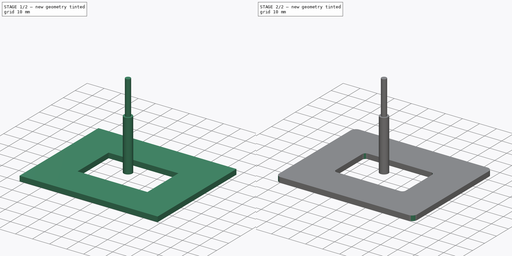
[diagram: build sequence overview — one tinted view per stage of 2, left to right]
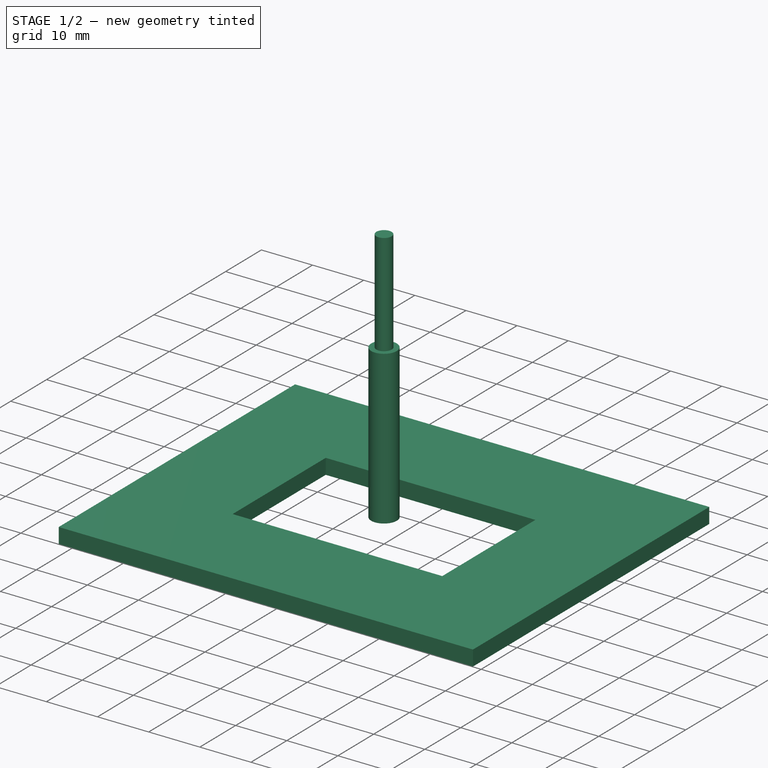
[diagram: stage 1 of 2 — iso view after this stage's code; geometry added in this stage tinted green]
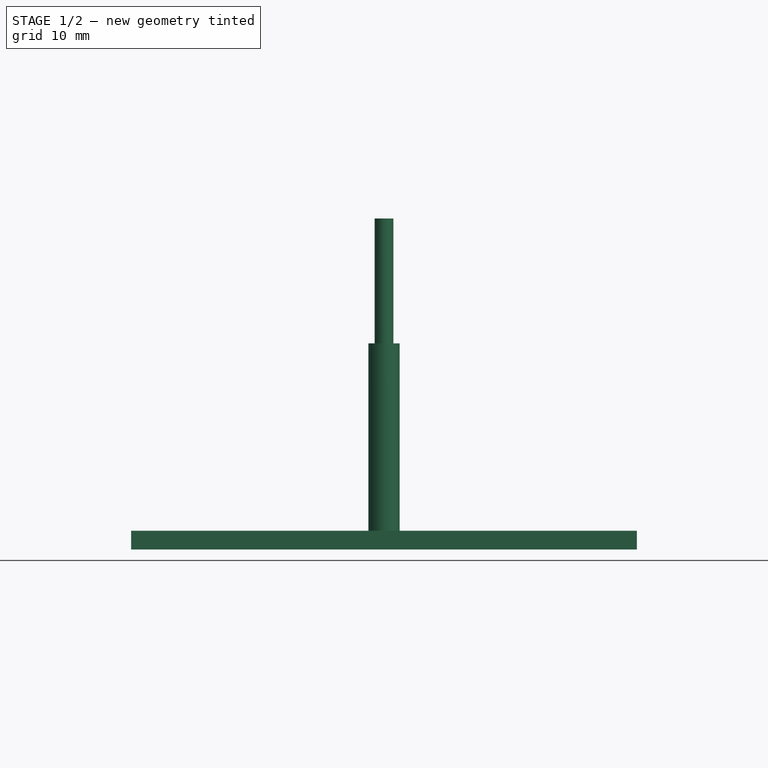
[diagram: stage 1 of 2 — front view after this stage's code; geometry added in this stage tinted green]
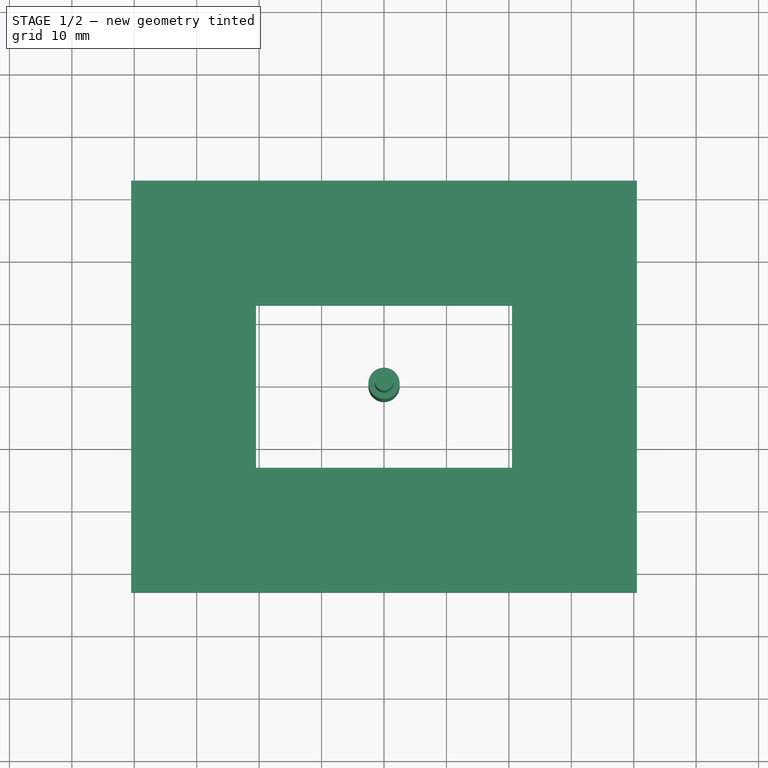
[diagram: stage 1 of 2 — top view after this stage's code; geometry added in this stage tinted green]
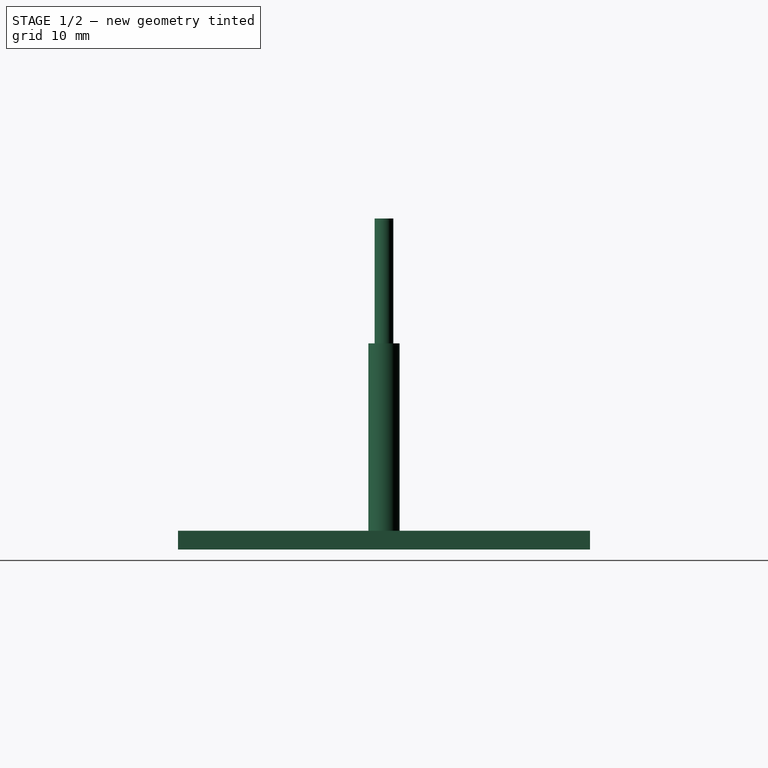
[diagram: stage 1 of 2 — right view after this stage's code; geometry added in this stage tinted green]
FCSTD DOCUMENT  (FreeCAD 1.1R42466 (Git))
Label: Balcony_Front_Flore3
License: All rights reserved
LicenseURL: https://en.wikipedia.org/wiki/All_rights_reserved
objects: App::Point×2, Sketcher::SketchObject×2, PartDesign::Fillet×2, PartDesign::Body×2, PartDesign::Pad×1, App::FeaturePython×1, PartDesign::Revolution×1
note: 18 computed .brp shape members not serialized (recipe doc carries the construction recipe); baked Part::Feature solids carry a one-line shape summary decoded from their .brp

FEATURE [App::Point] Origin001
  Role = Origin
FEATURE [Sketcher::SketchObject] Sketch
  ArcFitTolerance = 1e-06
  AttachmentSupport = -> [Origin]
  ExternalTypes = [0]
  FullyConstrained = true
  MakeInternals = false
  MapMode = 5
  sketch-geometry (10):
    g0: LineSegment StartX=-20.5 StartY=-13 StartZ=0 EndX=20.5 EndY=-13 EndZ=0
    g1: LineSegment StartX=20.5 StartY=-13 StartZ=0 EndX=20.5 EndY=13 EndZ=0
    g2: LineSegment StartX=20.5 StartY=13 StartZ=0 EndX=-20.5 EndY=13 EndZ=0
    g3: LineSegment StartX=-20.5 StartY=13 StartZ=0 EndX=-20.5 EndY=-13 EndZ=0
    g4: GeomPoint [constr] X=0 Y=0 Z=0
    g5: LineSegment StartX=-40.5 StartY=-33 StartZ=0 EndX=40.5 EndY=-33 EndZ=0
    g6: LineSegment StartX=40.5 StartY=-33 StartZ=0 EndX=40.5 EndY=33 EndZ=0
    g7: LineSegment StartX=40.5 StartY=33 StartZ=0 EndX=-40.5 EndY=33 EndZ=0
    g8: LineSegment StartX=-40.5 StartY=33 StartZ=0 EndX=-40.5 EndY=-33 EndZ=0
    g9: GeomPoint [constr] X=0 Y=0 Z=0
  constraints (24):
    c: Coincident(g0,g1)
    c: Coincident(g1,g2)
    c: Coincident(g2,g3)
    c: Coincident(g3,g0)
    c: Horizontal(g0)
    c: Horizontal(g2)
    c: Vertical(g1)
    c: Vertical(g3)
    c: Symmetric(g2,g0,g4)
    c: Distance(g1,g3) = 41
    c: Distance(g0,g2) = 26
    c: Coincident(g4,g-1)
    c: Coincident(g5,g6)
    c: Coincident(g6,g7)
    c: Coincident(g7,g8)
    c: Coincident(g8,g5)
    c: Horizontal(g5)
    c: Horizontal(g7)
    c: Vertical(g6)
    c: Vertical(g8)
    c: Symmetric(g7,g5,g9)
    c: Distance(g6,g8) = 81
    c: Distance(g5,g7) = 66
    c: Coincident(g9,g4)
FEATURE [PartDesign::Pad] Pad
  Direction = (0,0,1)
  Length = 3
  Length2 = 10
  Offset = 3
  Profile = -> Sketch
  ReferenceAxis = -> Sketch [N_Axis]
  Refine = true
  Reversed = true
  Suppressed = false
  Type = 0
FEATURE [PartDesign::Body] Body
  AllowCompound = false
  Group = -> [Sketch,Pad,Fillet,Fillet001]
  Origin = -> Origin
  Tip = -> Fillet001
FEATURE [App::FeaturePython] PropertyBag  label="Attributes017"  # WARN: FeaturePython — macro-defined, semantics opaque (R4)
  CustomPropertyGroups = 0
  CuttingEdgeHeight = 30
  Diameter = 5
  Flutes = 4
  Length = 50
  ShankDiameter = 3
FEATURE [Sketcher::SketchObject] Sketch003
  ArcFitTolerance = 0
  AttachmentSupport = -> [XZ_Plane003]
  ExternalTypes = [0]
  FullyConstrained = true
  MakeInternals = false
  MapMode = 5
  Placement = pos=(0,0,0) rot=(1,0,0;1.5708rad)
  expr: Constraints[10] = <<Attributes017>>.Length
  expr: Constraints[16] = <<Attributes017>>.ShankDiameter
  expr: Constraints[18] = <<Attributes017>>.CuttingEdgeHeight
  expr: Constraints[9] = <<Attributes017>>.Diameter
  sketch-geometry (8):
    g0: LineSegment StartX=0 StartY=50 StartZ=0 EndX=0 EndY=0 EndZ=0
    g1: LineSegment StartX=0 StartY=0 StartZ=0 EndX=2.5 EndY=0 EndZ=0
    g2: LineSegment StartX=2.5 StartY=0 StartZ=0 EndX=2.5 EndY=30 EndZ=0
    g3: LineSegment StartX=1.5 StartY=50 StartZ=0 EndX=0 EndY=50 EndZ=0
    g4: LineSegment [constr] StartX=2.5 StartY=0 StartZ=0 EndX=-2.5 EndY=0 EndZ=0
    g5: LineSegment StartX=1.5 StartY=29.99 StartZ=0 EndX=2.5 EndY=30 EndZ=0
    g6: LineSegment StartX=1.5 StartY=50 StartZ=0 EndX=1.5 EndY=29.99 EndZ=0
    g7: LineSegment [constr] StartX=-1.5 StartY=50 StartZ=0 EndX=1.5 EndY=50 EndZ=0
  constraints (21):
    c: Vertical(g0)
    c: Coincident(g0,g1)
    c: Horizontal(g1)
    c: Coincident(g1,g2)
    c: Vertical(g2)
    c: Horizontal(g3)
    c: Coincident(g0,g3)
    c: Coincident(g4,g1)
    c: Symmetric(g1,g4,g0)
    c: DistanceX(g4,g4) = 5
    c: DistanceY(g2,g3) = 50
    c: Coincident(g2,g5)
    c: Vertical(g6)
    c: Coincident(g3,g6)
    c: Symmetric(g7,g7,g0)
    c: Coincident(g7,g3)
    c: DistanceX(g7,g7) = 3
    c: Coincident(g5,g6)
    c: DistanceY(g2) = 30
    c: Coincident(g0,g-1)
    c: DistanceY(g5,g2) = 0.01
FEATURE [PartDesign::Revolution] Revolution
  AllowMultiFace = false
  Angle = 360
  Angle2 = 60
  Axis = (0,2e-16,1)
  Base = (0,0,0)
  Placement = pos=(0,0,0) rot=(1,0,0;1.5708rad)
  Profile = -> Sketch003
  ReferenceAxis = -> Sketch003 [V_Axis]
  Reversed = true
  Suppressed = false
  Type = 0
FEATURE [App::Point] Origin006
  Role = Origin
FEATURE [PartDesign::Body] Body003  label="Endmill003"
  AllowCompound = false
  Group = -> [Sketch003,Revolution,PropertyBag]
  Origin = -> Origin007
  Tip = -> Revolution
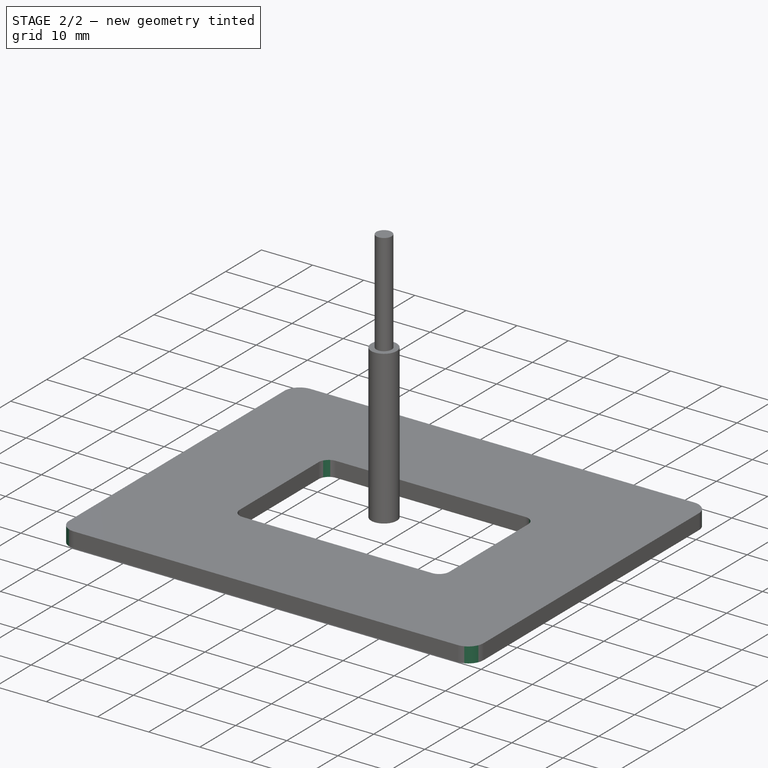
[diagram: stage 2 of 2 — iso view after this stage's code; geometry added in this stage tinted green]
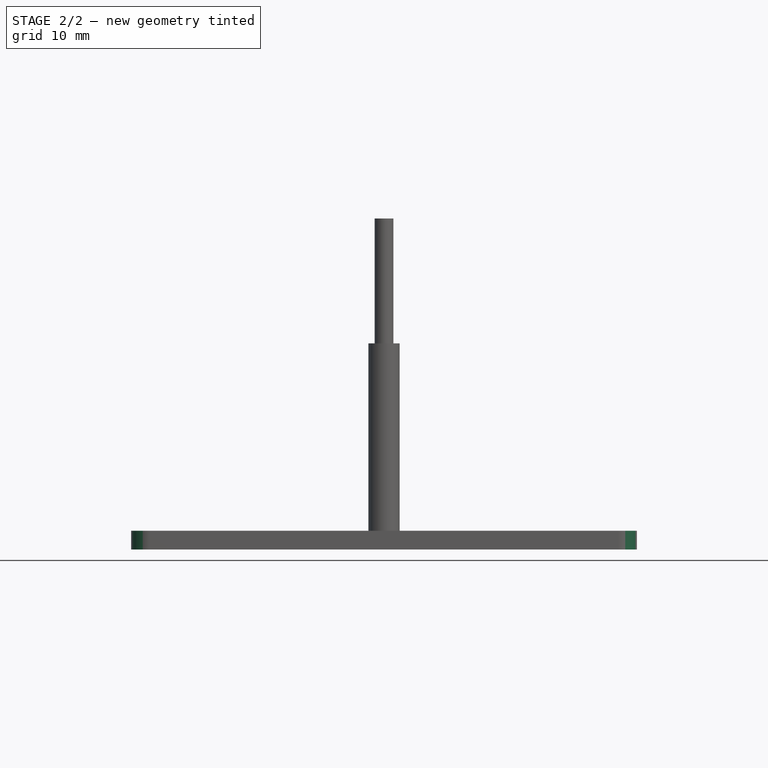
[diagram: stage 2 of 2 — front view after this stage's code; geometry added in this stage tinted green]
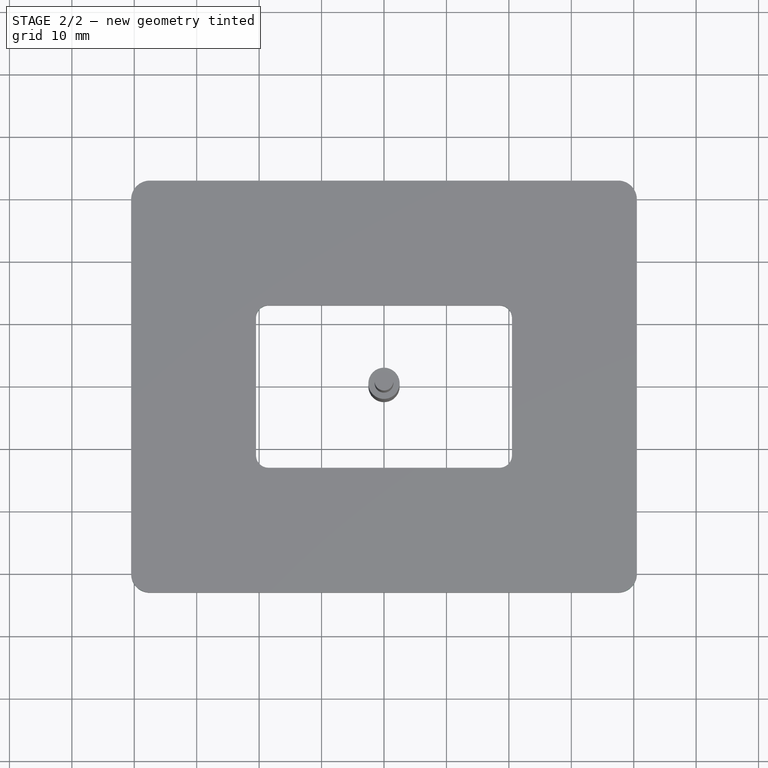
[diagram: stage 2 of 2 — top view after this stage's code; geometry added in this stage tinted green]
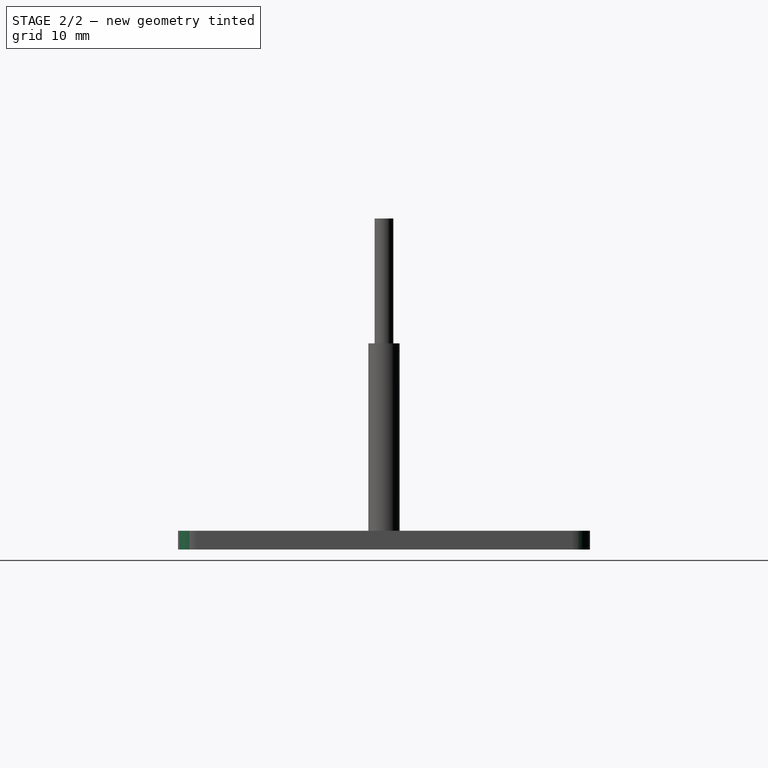
[diagram: stage 2 of 2 — right view after this stage's code; geometry added in this stage tinted green]
FEATURE [PartDesign::Fillet] Fillet
  Base = -> Pad [Edge2,Edge1,Edge5,Edge8]
  BaseFeature = -> Pad
  Radius = 3
  Refine = true
  SupportTransform = false
  Suppressed = false
  UseAllEdges = false
FEATURE [PartDesign::Fillet] Fillet001
  Base = -> Fillet [Edge34,Edge33,Edge36,Edge35]
  BaseFeature = -> Fillet
  Radius = 2
  Refine = true
  SupportTransform = false
  Suppressed = false
  UseAllEdges = false
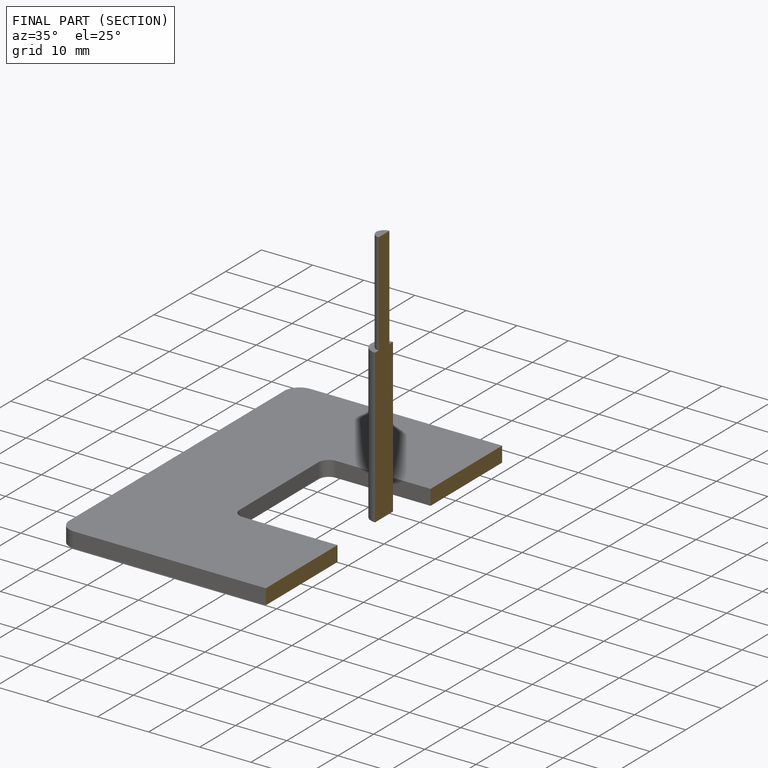
[diagram: finished part — half-section view (interior)]
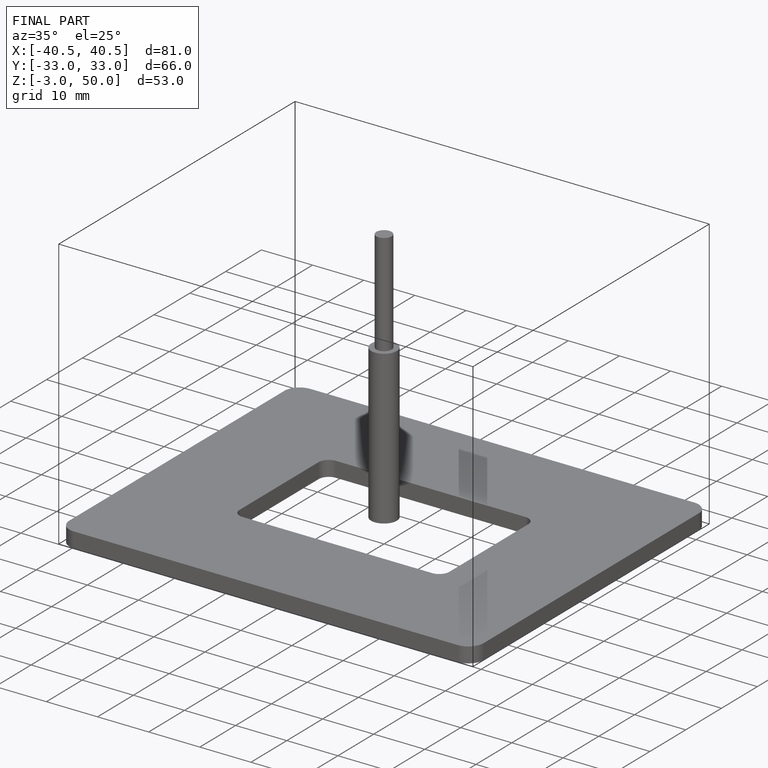
[diagram: finished part — iso view with bounding-box wireframe]
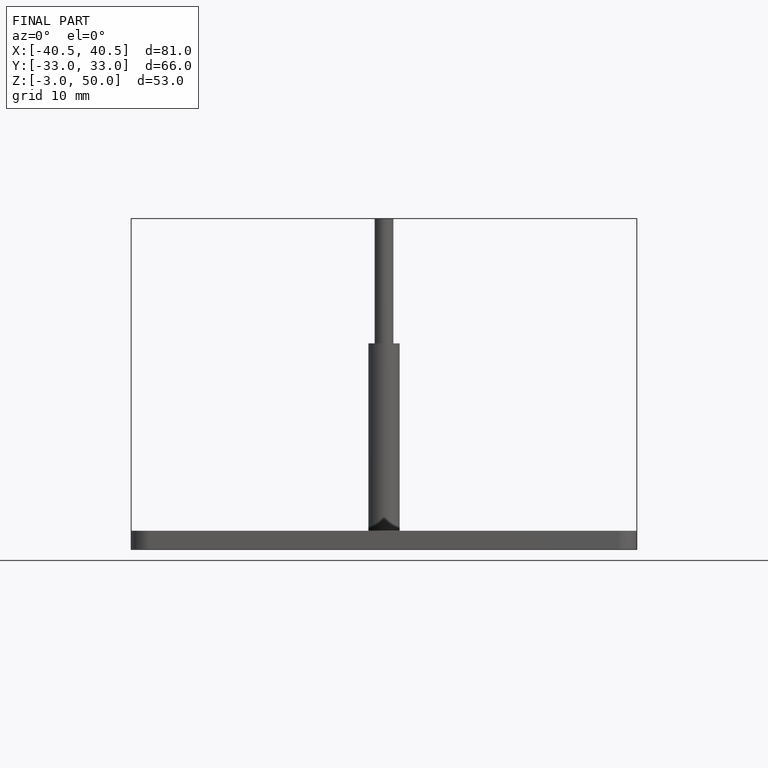
[diagram: finished part — front view with bounding-box wireframe]
